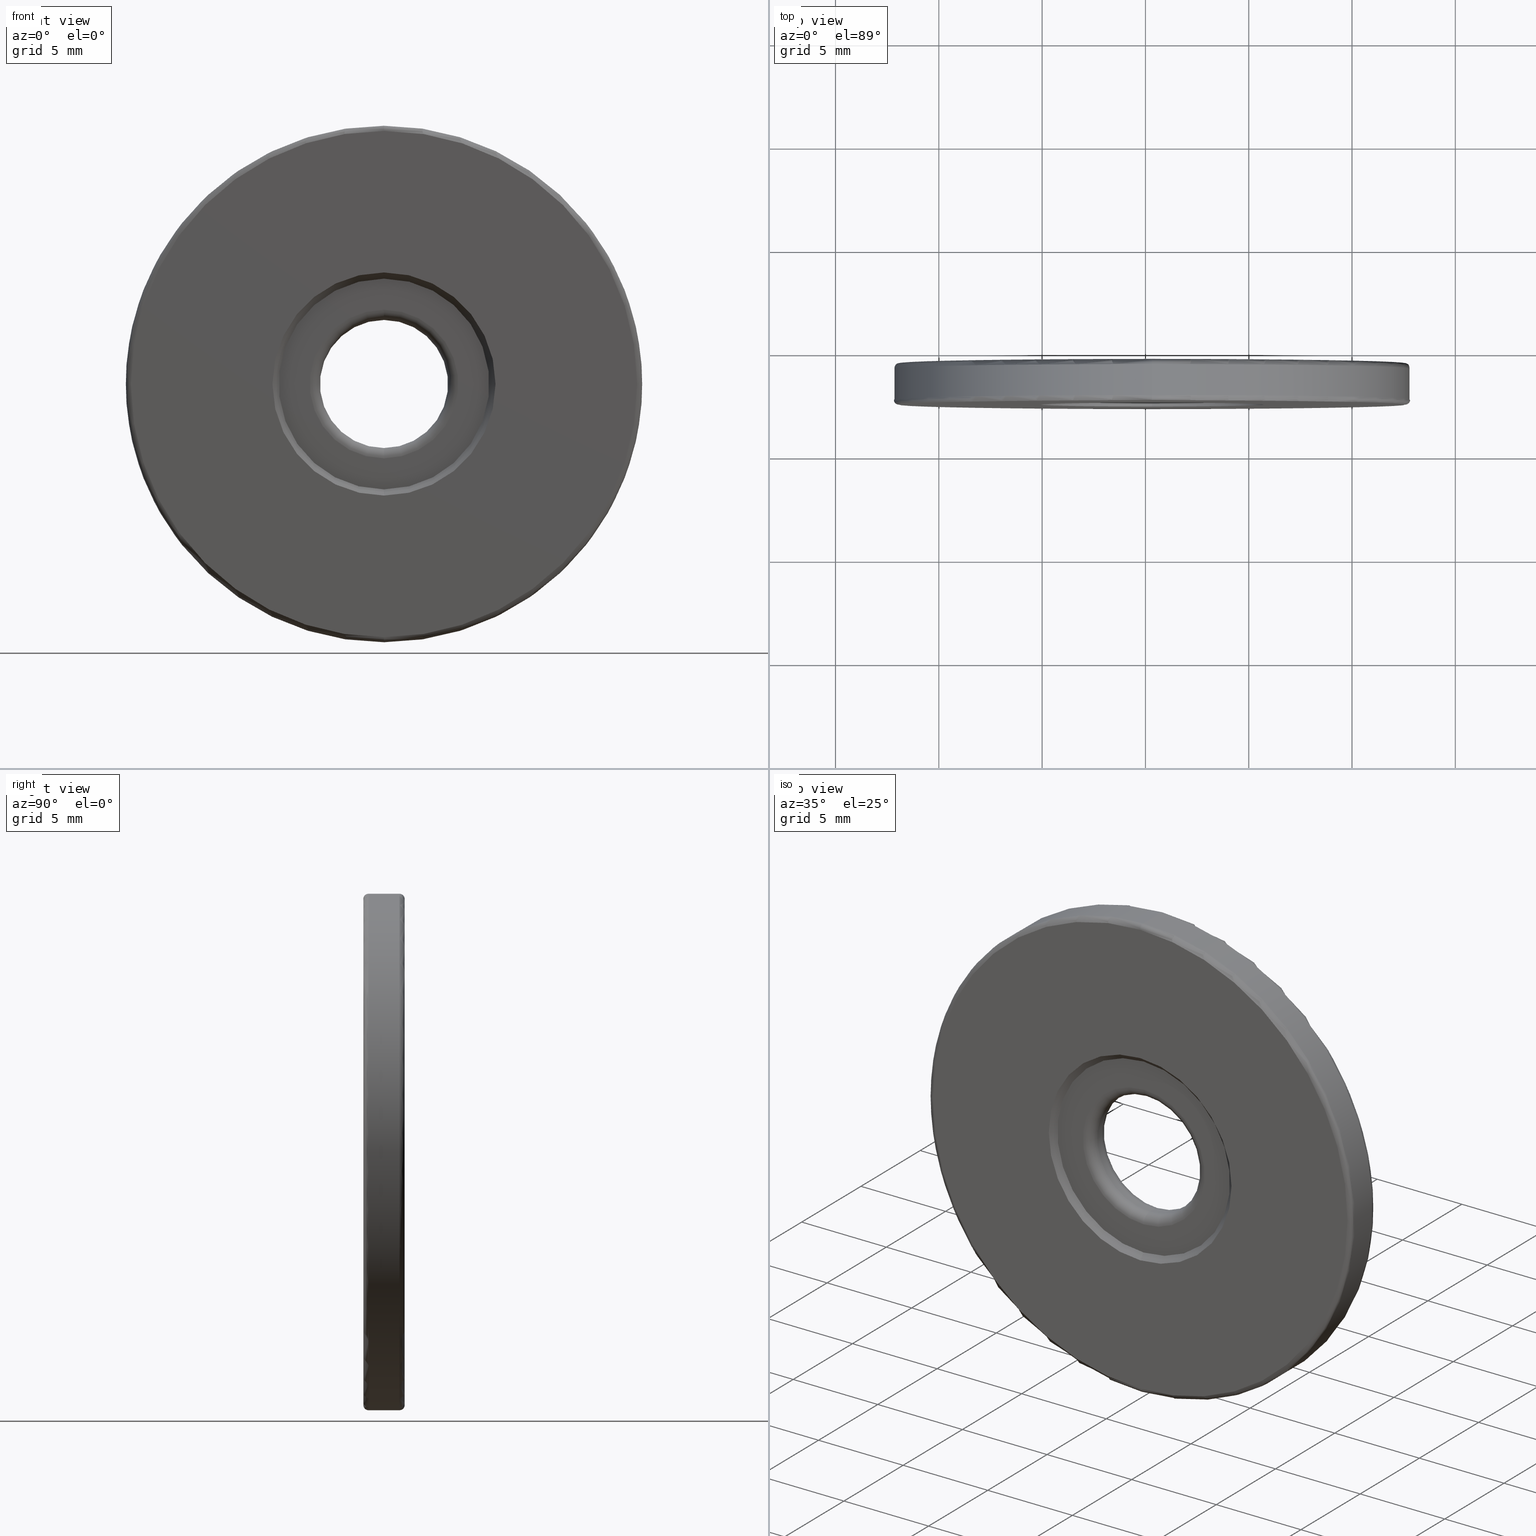
[diagram: canonical four-view strip — front | top / right | iso, engineering-drawing reading convention]
A machine part, canonical four-view strip (front | top / right | iso — engineering-drawing reading convention). The complete STEP part file that produces these views, byte-faithful:
ISO-10303-21;
HEADER;
FILE_DESCRIPTION (( 'STEP AP203' ),
    '1' );
FILE_NAME ('1.4.2.101_ZGH-25-DK2.STEP',
    '2022-04-15T02:59:30',
    ( '' ),
    ( '' ),
    'SwSTEP 2.0',
    'SolidWorks 2021',
    '' );
FILE_SCHEMA (( 'CONFIG_CONTROL_DESIGN' ));
ENDSEC;

DATA;
#1 = ADVANCED_FACE ( 'NONE', ( #565, #130 ), #326, .T. ) ;
#2 = CARTESIAN_POINT ( 'NONE',  ( -4.682026255059964726, -1.794975976998274936, 25.00000000000000000 ) ) ;
#3 = AXIS2_PLACEMENT_3D ( 'NONE', #501, #265, #271 ) ;
#4 = AXIS2_PLACEMENT_3D ( 'NONE', #418, #551, #172 ) ;
#5 = LOCAL_TIME ( 10, 59, 30.00000000000000000, #485 ) ;
#6 = DIRECTION ( 'NONE',  ( -1.000000000000000000, -0.0000000000000000000, -0.0000000000000000000 ) ) ;
#7 = DIRECTION ( 'NONE',  ( 0.0000000000000000000, 0.0000000000000000000, 1.000000000000000000 ) ) ;
#8 = DIRECTION ( 'NONE',  ( 0.0000000000000000000, 0.0000000000000000000, 1.000000000000000000 ) ) ;
#9 = FACE_BOUND ( 'NONE', #506, .T. ) ;
#10 = DATE_AND_TIME ( #64, #5 ) ;
#11 = DIRECTION ( 'NONE',  ( 0.0000000000000000000, 1.000000000000000000, 0.0000000000000000000 ) ) ;
#12 = AXIS2_PLACEMENT_3D ( 'NONE', #143, #546, #8 ) ;
#13 = AXIS2_PLACEMENT_3D ( 'NONE', #128, #571, #295 ) ;
#14 = DIRECTION ( 'NONE',  ( 0.0000000000000000000, -1.000000000000000000, 0.0000000000000000000 ) ) ;
#15 = CALENDAR_DATE ( 2022, 15, 4 ) ;
#16 = DIRECTION ( 'NONE',  ( 0.0000000000000000000, 0.0000000000000000000, 1.000000000000000000 ) ) ;
#17 = ORIENTED_EDGE ( 'NONE', *, *, #28, .F. ) ;
#18 = CC_DESIGN_PERSON_AND_ORGANIZATION_ASSIGNMENT ( #206, #544, ( #336 ) ) ;
#19 = CYLINDRICAL_SURFACE ( 'NONE', #120, 3.099999999999998757 ) ;
#20 = COORDINATED_UNIVERSAL_TIME_OFFSET ( 8, 0, .AHEAD. ) ;
#21 = DIRECTION ( 'NONE',  ( -0.0000000000000000000, 1.000000000000000000, -0.0000000000000000000 ) ) ;
#22 = VECTOR ( 'NONE', #109, 1000.000000000000000 ) ;
#23 = EDGE_LOOP ( 'NONE', ( #112, #280, #35, #330 ) ) ;
#24 = CIRCLE ( 'NONE', #324, 5.100000000000000533 ) ;
#25 = PERSON_AND_ORGANIZATION ( #556, #469 ) ;
#26 = CARTESIAN_POINT ( 'NONE',  ( -4.682026255059963837, -0.5949759769982747581, 19.60000000000000142 ) ) ;
#27 = ORIENTED_EDGE ( 'NONE', *, *, #446, .T. ) ;
#28 = EDGE_CURVE ( 'NONE', #275, #267, #603, .T. ) ;
#29 = CARTESIAN_POINT ( 'NONE',  ( -4.682026255059964726, -1.394975976998274803, 21.90000000000000213 ) ) ;
#30 = CARTESIAN_POINT ( 'NONE',  ( -4.682026255059964726, -2.594975976998274980, 25.00000000000000000 ) ) ;
#31 = ORIENTED_EDGE ( 'NONE', *, *, #268, .F. ) ;
#32 = EDGE_CURVE ( 'NONE', #272, #454, #377, .T. ) ;
#33 = CARTESIAN_POINT ( 'NONE',  ( -4.682026255059962949, -0.8449759769982747581, 12.50000000000000000 ) ) ;
#34 = DIRECTION ( 'NONE',  ( -0.0000000000000000000, -1.000000000000000000, -0.0000000000000000000 ) ) ;
#35 = ORIENTED_EDGE ( 'NONE', *, *, #38, .T. ) ;
#36 = AXIS2_PLACEMENT_3D ( 'NONE', #616, #279, #420 ) ;
#37 = CARTESIAN_POINT ( 'NONE',  ( -4.682026255059964726, -0.8449759769982747581, 25.00000000000000000 ) ) ;
#38 = EDGE_CURVE ( 'NONE', #213, #472, #584, .T. ) ;
#39 = DIRECTION ( 'NONE',  ( -0.0000000000000000000, -1.000000000000000000, -0.0000000000000000000 ) ) ;
#40 = ORIENTED_EDGE ( 'NONE', *, *, #32, .F. ) ;
#41 = FACE_OUTER_BOUND ( 'NONE', #510, .T. ) ;
#42 = PLANE ( 'NONE',  #518 ) ;
#43 = VECTOR ( 'NONE', #439, 1000.000000000000000 ) ;
#44 = AXIS2_PLACEMENT_3D ( 'NONE', #89, #341, #191 ) ;
#45 = DIRECTION ( 'NONE',  ( 0.0000000000000000000, 1.000000000000000000, 0.0000000000000000000 ) ) ;
#46 = LINE ( 'NONE', #573, #179 ) ;
#47 = ORIENTED_EDGE ( 'NONE', *, *, #166, .F. ) ;
#48 = ADVANCED_FACE ( 'NONE', ( #190 ), #197, .F. ) ;
#49 = ORIENTED_EDGE ( 'NONE', *, *, #72, .T. ) ;
#50 = CARTESIAN_POINT ( 'NONE',  ( -4.682026255059964726, -2.594975976998274980, 28.10000000000000142 ) ) ;
#51 = CARTESIAN_POINT ( 'NONE',  ( -4.682026255059964726, -2.344975976998274980, 25.00000000000000000 ) ) ;
#52 = AXIS2_PLACEMENT_3D ( 'NONE', #394, #6, #104 ) ;
#53 = AXIS2_PLACEMENT_3D ( 'NONE', #276, #533, #97 ) ;
#54 = APPLICATION_PROTOCOL_DEFINITION ( 'international standard', 'config_control_design', 1994, #460 ) ;
#55 = LINE ( 'NONE', #283, #99 ) ;
#56 = CARTESIAN_POINT ( 'NONE',  ( -4.682026255059964726, -2.294975976998275158, 25.00000000000000000 ) ) ;
#57 = DIRECTION ( 'NONE',  ( -0.0000000000000000000, -1.000000000000000000, -0.0000000000000000000 ) ) ;
#58 = CC_DESIGN_PERSON_AND_ORGANIZATION_ASSIGNMENT ( #296, #591, ( #288 ) ) ;
#59 = VERTEX_POINT ( 'NONE', #154 ) ;
#60 = FACE_OUTER_BOUND ( 'NONE', #69, .T. ) ;
#61 = EDGE_CURVE ( 'NONE', #317, #269, #291, .T. ) ;
#62 = AXIS2_PLACEMENT_3D ( 'NONE', #435, #14, #348 ) ;
#63 = CIRCLE ( 'NONE', #36, 3.099999999999998757 ) ;
#64 = CALENDAR_DATE ( 2022, 15, 4 ) ;
#65 = DIRECTION ( 'NONE',  ( 0.0000000000000000000, 0.0000000000000000000, -1.000000000000000000 ) ) ;
#66 = ORIENTED_EDGE ( 'NONE', *, *, #166, .T. ) ;
#67 = DIRECTION ( 'NONE',  ( 0.0000000000000000000, 1.000000000000000000, 0.0000000000000000000 ) ) ;
#68 = FACE_OUTER_BOUND ( 'NONE', #160, .T. ) ;
#69 = EDGE_LOOP ( 'NONE', ( #354, #459 ) ) ;
#70 = DIRECTION ( 'NONE',  ( 0.0000000000000000000, 0.0000000000000000000, 1.000000000000000000 ) ) ;
#71 = ORIENTED_EDGE ( 'NONE', *, *, #82, .F. ) ;
#72 = EDGE_CURVE ( 'NONE', #193, #267, #107, .T. ) ;
#73 = CIRCLE ( 'NONE', #479, 12.50000000000000355 ) ;
#74 = DIRECTION ( 'NONE',  ( 1.000000000000000000, -0.0000000000000000000, 1.224646799147353207E-16 ) ) ;
#75 = ORIENTED_EDGE ( 'NONE', *, *, #360, .T. ) ;
#76 = PRODUCT_DEFINITION_FORMATION_WITH_SPECIFIED_SOURCE ( '�κ�', '', #336, .NOT_KNOWN. ) ;
#77 = FACE_OUTER_BOUND ( 'NONE', #474, .T. ) ;
#78 = ORIENTED_EDGE ( 'NONE', *, *, #124, .T. ) ;
#79 = ORIENTED_EDGE ( 'NONE', *, *, #489, .T. ) ;
#80 = FACE_OUTER_BOUND ( 'NONE', #513, .T. ) ;
#81 = ORIENTED_EDGE ( 'NONE', *, *, #268, .T. ) ;
#82 = EDGE_CURVE ( 'NONE', #617, #272, #524, .T. ) ;
#83 = FACE_OUTER_BOUND ( 'NONE', #23, .T. ) ;
#84 = ORIENTED_EDGE ( 'NONE', *, *, #582, .F. ) ;
#85 = CIRCLE ( 'NONE', #613, 0.5000000000000004441 ) ;
#86 = CIRCLE ( 'NONE', #614, 12.25000000000000355 ) ;
#87 = DIRECTION ( 'NONE',  ( 0.0000000000000000000, 1.000000000000000000, 0.0000000000000000000 ) ) ;
#88 = DIRECTION ( 'NONE',  ( 0.0000000000000000000, 1.000000000000000000, 0.0000000000000000000 ) ) ;
#89 = CARTESIAN_POINT ( 'NONE',  ( -4.682026255059964726, -2.294975976998275158, 25.00000000000000000 ) ) ;
#90 = ORIENTED_EDGE ( 'NONE', *, *, #412, .F. ) ;
#91 = DIRECTION ( 'NONE',  ( 0.0000000000000000000, 1.000000000000000000, 0.0000000000000000000 ) ) ;
#92 = EDGE_CURVE ( 'NONE', #213, #317, #155, .T. ) ;
#93 = ORIENTED_EDGE ( 'NONE', *, *, #493, .T. ) ;
#94 = CIRCLE ( 'NONE', #274, 3.599999999999999201 ) ;
#95 = EDGE_CURVE ( 'NONE', #617, #163, #85, .T. ) ;
#96 = VERTEX_POINT ( 'NONE', #577 ) ;
#97 = DIRECTION ( 'NONE',  ( 0.0000000000000000000, 0.0000000000000000000, 1.000000000000000000 ) ) ;
#98 = AXIS2_PLACEMENT_3D ( 'NONE', #159, #162, #115 ) ;
#99 = VECTOR ( 'NONE', #430, 1000.000000000000000 ) ;
#100 = DIRECTION ( 'NONE',  ( -1.000000000000000000, 0.0000000000000000000, 0.0000000000000000000 ) ) ;
#101 = LINE ( 'NONE', #50, #133 ) ;
#102 = ORIENTED_EDGE ( 'NONE', *, *, #588, .F. ) ;
#103 = CARTESIAN_POINT ( 'NONE',  ( -4.682026255059964726, -0.5949759769982747581, 25.00000000000000000 ) ) ;
#104 = DIRECTION ( 'NONE',  ( 0.0000000000000000000, 0.0000000000000000000, 1.000000000000000000 ) ) ;
#105 = ADVANCED_FACE ( 'NONE', ( #486 ), #466, .T. ) ;
#106 = ORIENTED_EDGE ( 'NONE', *, *, #95, .T. ) ;
#107 = CIRCLE ( 'NONE', #516, 0.5000000000000004441 ) ;
#108 = AXIS2_PLACEMENT_3D ( 'NONE', #559, #452, #400 ) ;
#109 = DIRECTION ( 'NONE',  ( 0.0000000000000000000, 0.7071067811865454633, 0.7071067811865495711 ) ) ;
#110 = ORIENTED_EDGE ( 'NONE', *, *, #340, .T. ) ;
#111 = DIRECTION ( 'NONE',  ( 0.0000000000000000000, 0.0000000000000000000, 1.000000000000000000 ) ) ;
#112 = ORIENTED_EDGE ( 'NONE', *, *, #61, .F. ) ;
#113 = ADVANCED_FACE ( 'NONE', ( #204 ), #547, .T. ) ;
#114 = PERSON_AND_ORGANIZATION ( #556, #469 ) ;
#115 = DIRECTION ( 'NONE',  ( 0.0000000000000000000, 0.0000000000000000000, 1.000000000000000000 ) ) ;
#116 = DIRECTION ( 'NONE',  ( 0.0000000000000000000, 0.0000000000000000000, -1.000000000000000000 ) ) ;
#117 = ORIENTED_EDGE ( 'NONE', *, *, #566, .F. ) ;
#118 = SHAPE_DEFINITION_REPRESENTATION ( #289, #184 ) ;
#119 = DIRECTION ( 'NONE',  ( 0.0000000000000000000, -1.000000000000000000, 0.0000000000000000000 ) ) ;
#120 = AXIS2_PLACEMENT_3D ( 'NONE', #207, #396, #592 ) ;
#121 = EDGE_LOOP ( 'NONE', ( #540, #81, #527, #509 ) ) ;
#122 = UNCERTAINTY_MEASURE_WITH_UNIT (LENGTH_MEASURE( 1.000000000000000082E-05 ), #378, 'distance_accuracy_value', 'NONE');
#123 = CARTESIAN_POINT ( 'NONE',  ( -4.682026255059963837, -2.594975976998274980, 30.40000000000000568 ) ) ;
#124 = EDGE_CURVE ( 'NONE', #158, #284, #492, .T. ) ;
#125 = SECURITY_CLASSIFICATION_LEVEL ( 'unclassified' ) ;
#126 = LINE ( 'NONE', #367, #285 ) ;
#127 = EDGE_LOOP ( 'NONE', ( #427, #498, #238, #380 ) ) ;
#128 = CARTESIAN_POINT ( 'NONE',  ( -4.682026255059964726, -0.5949759769982747581, 25.00000000000000000 ) ) ;
#129 = DIRECTION ( 'NONE',  ( 0.0000000000000000000, 0.0000000000000000000, -1.000000000000000000 ) ) ;
#130 = FACE_OUTER_BOUND ( 'NONE', #314, .T. ) ;
#131 = TOROIDAL_SURFACE ( 'NONE', #436, 12.25000000000000000, 0.2500000000000000000 ) ;
#132 = AXIS2_PLACEMENT_3D ( 'NONE', #2, #183, #379 ) ;
#133 = VECTOR ( 'NONE', #282, 1000.000000000000000 ) ;
#134 = DIRECTION ( 'NONE',  ( 0.0000000000000000000, 0.0000000000000000000, 1.000000000000000000 ) ) ;
#135 = EDGE_LOOP ( 'NONE', ( #364, #240, #562, #102 ) ) ;
#136 = ADVANCED_FACE ( 'NONE', ( #255 ), #242, .T. ) ;
#137 = CARTESIAN_POINT ( 'NONE',  ( -4.682026255059963837, -0.8949759769982746915, 21.40000000000000213 ) ) ;
#138 = AXIS2_PLACEMENT_3D ( 'NONE', #520, #88, #278 ) ;
#139 = AXIS2_PLACEMENT_3D ( 'NONE', #463, #369, #519 ) ;
#140 = FACE_BOUND ( 'NONE', #260, .T. ) ;
#141 = ORIENTED_EDGE ( 'NONE', *, *, #28, .T. ) ;
#142 = ADVANCED_FACE ( 'NONE', ( #478, #60 ), #249, .T. ) ;
#143 = CARTESIAN_POINT ( 'NONE',  ( -4.682026255059964726, -0.8449759769982747581, 25.00000000000000000 ) ) ;
#144 = VERTEX_POINT ( 'NONE', #241 ) ;
#145 = CARTESIAN_POINT ( 'NONE',  ( -4.682026255059964726, -0.8949759769982746915, 30.10000000000000142 ) ) ;
#146 = COORDINATED_UNIVERSAL_TIME_OFFSET ( 8, 0, .AHEAD. ) ;
#147 = AXIS2_PLACEMENT_3D ( 'NONE', #605, #21, #70 ) ;
#148 = CALENDAR_DATE ( 2022, 15, 4 ) ;
#149 = CARTESIAN_POINT ( 'NONE',  ( -4.682026255059964726, -0.5949759769982747581, 12.50000000000000000 ) ) ;
#150 = EDGE_CURVE ( 'NONE', #472, #269, #73, .T. ) ;
#151 = DIRECTION ( 'NONE',  ( -0.0000000000000000000, -1.000000000000000000, -0.0000000000000000000 ) ) ;
#152 = EDGE_LOOP ( 'NONE', ( #392, #298, #141, #549 ) ) ;
#153 = APPROVAL_ROLE ( '' ) ;
#154 = CARTESIAN_POINT ( 'NONE',  ( -4.682026255059964726, -2.594975976998274980, 37.25000000000000711 ) ) ;
#155 = CIRCLE ( 'NONE', #555, 12.50000000000000355 ) ;
#156 = CIRCLE ( 'NONE', #361, 3.099999999999998757 ) ;
#157 = FACE_OUTER_BOUND ( 'NONE', #219, .T. ) ;
#158 = VERTEX_POINT ( 'NONE', #26 ) ;
#159 = CARTESIAN_POINT ( 'NONE',  ( -4.682026255059964726, -0.8449759769982747581, 25.00000000000000000 ) ) ;
#160 = EDGE_LOOP ( 'NONE', ( #305, #264, #307, #117 ) ) ;
#161 = CALENDAR_DATE ( 2022, 15, 4 ) ;
#162 = DIRECTION ( 'NONE',  ( -0.0000000000000000000, -1.000000000000000000, -0.0000000000000000000 ) ) ;
#163 = VERTEX_POINT ( 'NONE', #304 ) ;
#164 = CARTESIAN_POINT ( 'NONE',  ( -4.682026255059964726, -1.394975976998274803, 28.10000000000000142 ) ) ;
#165 = AXIS2_PLACEMENT_3D ( 'NONE', #312, #74, #596 ) ;
#166 = EDGE_CURVE ( 'NONE', #383, #284, #263, .T. ) ;
#167 = PERSON_AND_ORGANIZATION_ROLE ( 'design_supplier' ) ;
#168 = CARTESIAN_POINT ( 'NONE',  ( -4.682026255059964726, -0.8949759769982746915, 28.60000000000000142 ) ) ;
#169 = DIRECTION ( 'NONE',  ( 0.0000000000000000000, -1.000000000000000000, 0.0000000000000000000 ) ) ;
#170 = ORIENTED_EDGE ( 'NONE', *, *, #609, .T. ) ;
#171 = CARTESIAN_POINT ( 'NONE',  ( -4.682026255059964726, -1.794975976998274936, 25.00000000000000000 ) ) ;
#172 = DIRECTION ( 'NONE',  ( 0.0000000000000000000, -0.0000000000000000000, 1.000000000000000000 ) ) ;
#173 = ORIENTED_EDGE ( 'NONE', *, *, #442, .F. ) ;
#174 = CARTESIAN_POINT ( 'NONE',  ( -4.682026255059964726, -0.8449759769982747581, 37.50000000000000711 ) ) ;
#175 = CIRCLE ( 'NONE', #147, 5.100000000000000533 ) ;
#176 = CARTESIAN_POINT ( 'NONE',  ( -4.682026255059964726, -1.394975976998274803, 25.00000000000000000 ) ) ;
#177 = CONICAL_SURFACE ( 'NONE', #293, 5.100000000000000533, 0.7853981633974511656 ) ;
#178 = DIRECTION ( 'NONE',  ( 0.0000000000000000000, 0.0000000000000000000, 1.000000000000000000 ) ) ;
#179 = VECTOR ( 'NONE', #287, 999.9999999999998863 ) ;
#180 = ADVANCED_FACE ( 'NONE', ( #157 ), #131, .T. ) ;
#181 = CARTESIAN_POINT ( 'NONE',  ( -4.682026255059964726, -0.8949759769982746915, 25.00000000000000000 ) ) ;
#182 = CARTESIAN_POINT ( 'NONE',  ( -4.682026255059962949, -2.294975976998275158, 28.60000000000000142 ) ) ;
#183 = DIRECTION ( 'NONE',  ( 0.0000000000000000000, -1.000000000000000000, 0.0000000000000000000 ) ) ;
#184 = MANIFOLD_SURFACE_SHAPE_REPRESENTATION ( '1.4.2.101_ZGH-25-DK2', ( #579, #557 ), #243 ) ;
#185 = EDGE_CURVE ( 'NONE', #576, #440, #601, .T. ) ;
#186 = EDGE_LOOP ( 'NONE', ( #27, #359 ) ) ;
#187 = AXIS2_PLACEMENT_3D ( 'NONE', #176, #347, #247 ) ;
#188 = CIRCLE ( 'NONE', #262, 0.5000000000000004441 ) ;
#189 =( NAMED_UNIT ( * ) SI_UNIT ( $, .STERADIAN. ) SOLID_ANGLE_UNIT ( ) );
#190 = FACE_OUTER_BOUND ( 'NONE', #337, .T. ) ;
#191 = DIRECTION ( 'NONE',  ( 0.0000000000000000000, 0.0000000000000000000, -1.000000000000000000 ) ) ;
#192 = DIRECTION ( 'NONE',  ( 0.0000000000000000000, 0.0000000000000000000, 1.000000000000000000 ) ) ;
#193 = VERTEX_POINT ( 'NONE', #168 ) ;
#194 = PLANE ( 'NONE',  #4 ) ;
#195 = DIRECTION ( 'NONE',  ( 0.0000000000000000000, 0.0000000000000000000, 1.000000000000000000 ) ) ;
#196 = ADVANCED_FACE ( 'NONE', ( #80 ), #177, .F. ) ;
#197 = CONICAL_SURFACE ( 'NONE', #209, 5.100000000000000533, 0.7853981633974511656 ) ;
#198 = AXIS2_PLACEMENT_3D ( 'NONE', #523, #91, #281 ) ;
#199 = APPROVAL_PERSON_ORGANIZATION ( #395, #543, #585 ) ;
#200 = CARTESIAN_POINT ( 'NONE',  ( -4.682026255059962949, -0.5949759769982747581, 12.75000000000000178 ) ) ;
#201 = CARTESIAN_POINT ( 'NONE',  ( -4.682026255059964726, -0.8449759769982747581, 25.00000000000000000 ) ) ;
#202 = EDGE_CURVE ( 'NONE', #317, #502, #574, .T. ) ;
#203 = DATE_AND_TIME ( #15, #507 ) ;
#204 = FACE_OUTER_BOUND ( 'NONE', #127, .T. ) ;
#205 = EDGE_CURVE ( 'NONE', #317, #213, #371, .T. ) ;
#206 = PERSON_AND_ORGANIZATION ( #556, #469 ) ;
#207 = CARTESIAN_POINT ( 'NONE',  ( -4.682026255059964726, -2.594975976998274980, 25.00000000000000000 ) ) ;
#208 = ORIENTED_EDGE ( 'NONE', *, *, #376, .T. ) ;
#209 = AXIS2_PLACEMENT_3D ( 'NONE', #491, #381, #391 ) ;
#210 = AXIS2_PLACEMENT_3D ( 'NONE', #471, #374, #464 ) ;
#211 = DIRECTION ( 'NONE',  ( 0.0000000000000000000, 0.0000000000000000000, -1.000000000000000000 ) ) ;
#212 = CC_DESIGN_APPROVAL ( #570, ( #76 ) ) ;
#213 = VERTEX_POINT ( 'NONE', #33 ) ;
#214 = PERSON_AND_ORGANIZATION ( #556, #469 ) ;
#215 = DIRECTION ( 'NONE',  ( 0.0000000000000000000, 1.000000000000000000, 0.0000000000000000000 ) ) ;
#216 = ORIENTED_EDGE ( 'NONE', *, *, #340, .F. ) ;
#217 = CARTESIAN_POINT ( 'NONE',  ( -4.682026255059964726, -2.344975976998274980, 37.25000000000000711 ) ) ;
#218 = DIRECTION ( 'NONE',  ( 0.0000000000000000000, 0.0000000000000000000, 1.000000000000000000 ) ) ;
#219 = EDGE_LOOP ( 'NONE', ( #532, #216, #309, #602 ) ) ;
#220 = ADVANCED_FACE ( 'NONE', ( #68 ), #410, .T. ) ;
#221 = DATE_AND_TIME ( #270, #539 ) ;
#222 = DIRECTION ( 'NONE',  ( 0.0000000000000000000, 0.0000000000000000000, -1.000000000000000000 ) ) ;
#223 = CIRCLE ( 'NONE', #235, 5.400000000000005684 ) ;
#224 = ORIENTED_EDGE ( 'NONE', *, *, #205, .F. ) ;
#225 = SECURITY_CLASSIFICATION ( '', '', #125 ) ;
#226 = CARTESIAN_POINT ( 'NONE',  ( -4.682026255059964726, -1.794975976998274936, 21.90000000000000213 ) ) ;
#227 = CARTESIAN_POINT ( 'NONE',  ( -4.682026255059964726, -0.5949759769982747581, 25.00000000000000000 ) ) ;
#228 = ORIENTED_EDGE ( 'NONE', *, *, #489, .F. ) ;
#229 = DIRECTION ( 'NONE',  ( 0.0000000000000000000, 0.0000000000000000000, 1.000000000000000000 ) ) ;
#230 = ADVANCED_FACE ( 'NONE', ( #308 ), #553, .F. ) ;
#231 = ORIENTED_EDGE ( 'NONE', *, *, #582, .T. ) ;
#232 = CARTESIAN_POINT ( 'NONE',  ( -4.682026255059964726, -1.394975976998274803, 25.00000000000000000 ) ) ;
#233 = CIRCLE ( 'NONE', #108, 0.2500000000000002220 ) ;
#234 = EDGE_LOOP ( 'NONE', ( #31, #224, #587, #228 ) ) ;
#235 = AXIS2_PLACEMENT_3D ( 'NONE', #468, #45, #561 ) ;
#236 = LOCAL_TIME ( 10, 59, 30.00000000000000000, #20 ) ;
#237 = DIRECTION ( 'NONE',  ( 0.0000000000000000000, -0.0000000000000000000, 1.000000000000000000 ) ) ;
#238 = ORIENTED_EDGE ( 'NONE', *, *, #390, .F. ) ;
#239 = EDGE_CURVE ( 'NONE', #522, #576, #175, .T. ) ;
#240 = ORIENTED_EDGE ( 'NONE', *, *, #185, .T. ) ;
#241 = CARTESIAN_POINT ( 'NONE',  ( -4.682026255059963837, -0.8949759769982746915, 19.90000000000000213 ) ) ;
#242 = TOROIDAL_SURFACE ( 'NONE', #344, 12.25000000000000000, 0.2500000000000000000 ) ;
#243 =( GEOMETRIC_REPRESENTATION_CONTEXT ( 3 ) GLOBAL_UNCERTAINTY_ASSIGNED_CONTEXT ( ( #122 ) ) GLOBAL_UNIT_ASSIGNED_CONTEXT ( ( #378, #428, #189 ) ) REPRESENTATION_CONTEXT ( 'NONE', 'WORKASPACE' ) );
#244 = DIRECTION ( 'NONE',  ( 0.0000000000000000000, 0.0000000000000000000, -1.000000000000000000 ) ) ;
#245 = CARTESIAN_POINT ( 'NONE',  ( -4.682026255059964726, -2.344975976998274980, 12.50000000000000000 ) ) ;
#246 = APPROVAL_STATUS ( 'not_yet_approved' ) ;
#247 = DIRECTION ( 'NONE',  ( 0.0000000000000000000, 0.0000000000000000000, 1.000000000000000000 ) ) ;
#248 = ADVANCED_FACE ( 'NONE', ( #77 ), #504, .T. ) ;
#249 = PLANE ( 'NONE',  #62 ) ;
#250 = PRODUCT_RELATED_PRODUCT_CATEGORY ( 'detail', '', ( #336 ) ) ;
#251 = OPEN_SHELL ( 'NONE', ( #48, #113, #302, #310, #499, #136, #248, #105, #475, #366, #558, #180, #612, #332, #142, #220, #230, #402, #1, #196 ) ) ;
#252 = TOROIDAL_SURFACE ( 'NONE', #568, 3.600000000000000089, 0.5000000000000000000 ) ;
#253 = CC_DESIGN_APPROVAL ( #406, ( #225 ) ) ;
#254 = PERSON_AND_ORGANIZATION ( #556, #469 ) ;
#255 = FACE_OUTER_BOUND ( 'NONE', #451, .T. ) ;
#256 = EDGE_CURVE ( 'NONE', #320, #472, #233, .T. ) ;
#257 = DIRECTION ( 'NONE',  ( 0.0000000000000000000, 0.0000000000000000000, 1.000000000000000000 ) ) ;
#258 = ORIENTED_EDGE ( 'NONE', *, *, #572, .F. ) ;
#259 = DIRECTION ( 'NONE',  ( 8.659560562354945184E-17, -0.7071067811865464625, 0.7071067811865486830 ) ) ;
#260 = EDGE_LOOP ( 'NONE', ( #401, #368 ) ) ;
#261 = AXIS2_PLACEMENT_3D ( 'NONE', #217, #408, #414 ) ;
#262 = AXIS2_PLACEMENT_3D ( 'NONE', #461, #375, #611 ) ;
#263 = LINE ( 'NONE', #597, #22 ) ;
#264 = ORIENTED_EDGE ( 'NONE', *, *, #382, .F. ) ;
#265 = DIRECTION ( 'NONE',  ( -0.0000000000000000000, 1.000000000000000000, -0.0000000000000000000 ) ) ;
#266 = DIRECTION ( 'NONE',  ( -0.0000000000000000000, 1.000000000000000000, -0.0000000000000000000 ) ) ;
#267 = VERTEX_POINT ( 'NONE', #164 ) ;
#268 = EDGE_CURVE ( 'NONE', #213, #599, #604, .T. ) ;
#269 = VERTEX_POINT ( 'NONE', #449 ) ;
#270 = CALENDAR_DATE ( 2022, 15, 4 ) ;
#271 = DIRECTION ( 'NONE',  ( 0.0000000000000000000, 0.0000000000000000000, 1.000000000000000000 ) ) ;
#272 = VERTEX_POINT ( 'NONE', #508 ) ;
#273 = AXIS2_PLACEMENT_3D ( 'NONE', #443, #353, #211 ) ;
#274 = AXIS2_PLACEMENT_3D ( 'NONE', #484, #57, #458 ) ;
#275 = VERTEX_POINT ( 'NONE', #29 ) ;
#276 = CARTESIAN_POINT ( 'NONE',  ( -4.682026255059964726, -2.344975976998274980, 25.00000000000000000 ) ) ;
#277 = FACE_OUTER_BOUND ( 'NONE', #135, .T. ) ;
#278 = DIRECTION ( 'NONE',  ( 0.0000000000000000000, -0.0000000000000000000, 1.000000000000000000 ) ) ;
#279 = DIRECTION ( 'NONE',  ( 0.0000000000000000000, 1.000000000000000000, 0.0000000000000000000 ) ) ;
#280 = ORIENTED_EDGE ( 'NONE', *, *, #205, .T. ) ;
#281 = DIRECTION ( 'NONE',  ( 0.0000000000000000000, 0.0000000000000000000, 1.000000000000000000 ) ) ;
#282 = DIRECTION ( 'NONE',  ( -0.0000000000000000000, 1.000000000000000000, -0.0000000000000000000 ) ) ;
#283 = CARTESIAN_POINT ( 'NONE',  ( -4.682026255059963837, -0.8949759769982721380, 19.90000000000000213 ) ) ;
#284 = VERTEX_POINT ( 'NONE', #441 ) ;
#285 = VECTOR ( 'NONE', #319, 1000.000000000000000 ) ;
#286 = EDGE_CURVE ( 'NONE', #59, #269, #615, .T. ) ;
#287 = DIRECTION ( 'NONE',  ( 0.0000000000000000000, -0.7071067811865464625, -0.7071067811865486830 ) ) ;
#288 = PRODUCT_DEFINITION ( 'δ֪', '', #76, #515 ) ;
#289 = PRODUCT_DEFINITION_SHAPE ( 'NONE', 'NONE',  #288 ) ;
#290 = DIRECTION ( 'NONE',  ( -0.0000000000000000000, -1.000000000000000000, -0.0000000000000000000 ) ) ;
#291 = LINE ( 'NONE', #481, #455 ) ;
#292 = ORIENTED_EDGE ( 'NONE', *, *, #588, .T. ) ;
#293 = AXIS2_PLACEMENT_3D ( 'NONE', #363, #316, #511 ) ;
#294 = CIRCLE ( 'NONE', #132, 3.099999999999998757 ) ;
#295 = DIRECTION ( 'NONE',  ( 0.0000000000000000000, 0.0000000000000000000, 1.000000000000000000 ) ) ;
#296 = PERSON_AND_ORGANIZATION ( #556, #469 ) ;
#297 = DIRECTION ( 'NONE',  ( -0.0000000000000000000, -1.000000000000000000, -0.0000000000000000000 ) ) ;
#298 = ORIENTED_EDGE ( 'NONE', *, *, #541, .T. ) ;
#299 = APPLICATION_PROTOCOL_DEFINITION ( 'international standard', 'config_control_design', 1994, #415 ) ;
#300 = ORIENTED_EDGE ( 'NONE', *, *, #321, .F. ) ;
#301 = ORIENTED_EDGE ( 'NONE', *, *, #82, .T. ) ;
#302 = ADVANCED_FACE ( 'NONE', ( #365 ), #19, .F. ) ;
#303 = AXIS2_PLACEMENT_3D ( 'NONE', #37, #87, #229 ) ;
#304 = CARTESIAN_POINT ( 'NONE',  ( -4.682026255059964726, -1.794975976998274936, 28.10000000000000142 ) ) ;
#305 = ORIENTED_EDGE ( 'NONE', *, *, #95, .F. ) ;
#306 = CARTESIAN_POINT ( 'NONE',  ( -4.682026255059964726, -1.794975976998274936, 25.00000000000000000 ) ) ;
#307 = ORIENTED_EDGE ( 'NONE', *, *, #32, .T. ) ;
#308 = FACE_OUTER_BOUND ( 'NONE', #607, .T. ) ;
#309 = ORIENTED_EDGE ( 'NONE', *, *, #286, .T. ) ;
#310 = ADVANCED_FACE ( 'NONE', ( #384 ), #252, .T. ) ;
#311 = PERSON_AND_ORGANIZATION ( #556, #469 ) ;
#312 = CARTESIAN_POINT ( 'NONE',  ( -4.682026255059962949, -0.8449759769982747581, 12.75000000000000178 ) ) ;
#313 = ORIENTED_EDGE ( 'NONE', *, *, #528, .T. ) ;
#314 = EDGE_LOOP ( 'NONE', ( #462, #75 ) ) ;
#315 = COORDINATED_UNIVERSAL_TIME_OFFSET ( 8, 0, .AHEAD. ) ;
#316 = DIRECTION ( 'NONE',  ( 0.0000000000000000000, 1.000000000000000000, 0.0000000000000000000 ) ) ;
#317 = VERTEX_POINT ( 'NONE', #174 ) ;
#318 = DIRECTION ( 'NONE',  ( 0.0000000000000000000, 0.0000000000000000000, 1.000000000000000000 ) ) ;
#319 = DIRECTION ( 'NONE',  ( -0.0000000000000000000, 1.000000000000000000, -0.0000000000000000000 ) ) ;
#320 = VERTEX_POINT ( 'NONE', #569 ) ;
#321 = EDGE_CURVE ( 'NONE', #440, #96, #223, .T. ) ;
#322 = AXIS2_PLACEMENT_3D ( 'NONE', #433, #11, #195 ) ;
#323 = CARTESIAN_POINT ( 'NONE',  ( -4.682026255059963837, -2.594975976998274980, 30.40000000000000568 ) ) ;
#324 = AXIS2_PLACEMENT_3D ( 'NONE', #419, #266, #358 ) ;
#325 = CYLINDRICAL_SURFACE ( 'NONE', #482, 12.50000000000000000 ) ;
#326 = PLANE ( 'NONE',  #138 ) ;
#327 = LOCAL_TIME ( 10, 59, 30.00000000000000000, #146 ) ;
#328 = DIRECTION ( 'NONE',  ( 0.0000000000000000000, 0.0000000000000000000, -1.000000000000000000 ) ) ;
#329 = FACE_OUTER_BOUND ( 'NONE', #594, .T. ) ;
#330 = ORIENTED_EDGE ( 'NONE', *, *, #150, .T. ) ;
#331 = DIRECTION ( 'NONE',  ( 0.0000000000000000000, 0.0000000000000000000, 1.000000000000000000 ) ) ;
#332 = ADVANCED_FACE ( 'NONE', ( #578 ), #411, .F. ) ;
#333 = AXIS2_PLACEMENT_3D ( 'NONE', #103, #151, #586 ) ;
#334 = ORIENTED_EDGE ( 'NONE', *, *, #360, .F. ) ;
#335 = CIRCLE ( 'NONE', #388, 12.25000000000000355 ) ;
#336 = PRODUCT ( '1.4.2.101_ZGH-25-DK2', '1.4.2.101_ZGH-25-DK2', '', ( #434 ) ) ;
#337 = EDGE_LOOP ( 'NONE', ( #334, #552, #84, #47 ) ) ;
#338 = COORDINATED_UNIVERSAL_TIME_OFFSET ( 8, 0, .AHEAD. ) ;
#339 = DIRECTION ( 'NONE',  ( 0.0000000000000000000, 1.000000000000000000, 0.0000000000000000000 ) ) ;
#340 = EDGE_CURVE ( 'NONE', #59, #320, #335, .T. ) ;
#341 = DIRECTION ( 'NONE',  ( -0.0000000000000000000, 1.000000000000000000, -0.0000000000000000000 ) ) ;
#342 = DATE_AND_TIME ( #148, #327 ) ;
#343 = DIRECTION ( 'NONE',  ( -0.0000000000000000000, 1.000000000000000000, -0.0000000000000000000 ) ) ;
#344 = AXIS2_PLACEMENT_3D ( 'NONE', #51, #488, #537 ) ;
#345 = AXIS2_PLACEMENT_3D ( 'NONE', #606, #453, #505 ) ;
#346 = CARTESIAN_POINT ( 'NONE',  ( 0.0000000000000000000, 0.0000000000000000000, 0.0000000000000000000 ) ) ;
#347 = DIRECTION ( 'NONE',  ( 0.0000000000000000000, 1.000000000000000000, 0.0000000000000000000 ) ) ;
#348 = DIRECTION ( 'NONE',  ( 0.0000000000000000000, 0.0000000000000000000, 1.000000000000000000 ) ) ;
#349 = ORIENTED_EDGE ( 'NONE', *, *, #38, .F. ) ;
#350 = CARTESIAN_POINT ( 'NONE',  ( -4.682026255059963837, -1.794975976998274936, 28.60000000000000142 ) ) ;
#351 = CIRCLE ( 'NONE', #345, 12.25000000000000355 ) ;
#352 = ORIENTED_EDGE ( 'NONE', *, *, #530, .F. ) ;
#353 = DIRECTION ( 'NONE',  ( -0.0000000000000000000, -1.000000000000000000, -0.0000000000000000000 ) ) ;
#354 = ORIENTED_EDGE ( 'NONE', *, *, #239, .F. ) ;
#355 = EDGE_CURVE ( 'NONE', #437, #193, #495, .T. ) ;
#356 = APPROVAL_DATE_TIME ( #399, #406 ) ;
#357 = CARTESIAN_POINT ( 'NONE',  ( -4.682026255059964726, -0.8449759769982747581, 37.25000000000000711 ) ) ;
#358 = DIRECTION ( 'NONE',  ( 0.0000000000000000000, 0.0000000000000000000, 1.000000000000000000 ) ) ;
#359 = ORIENTED_EDGE ( 'NONE', *, *, #355, .T. ) ;
#360 = EDGE_CURVE ( 'NONE', #144, #383, #517, .T. ) ;
#361 = AXIS2_PLACEMENT_3D ( 'NONE', #598, #169, #129 ) ;
#362 = PERSON_AND_ORGANIZATION_ROLE ( 'classification_officer' ) ;
#363 = CARTESIAN_POINT ( 'NONE',  ( -4.682026255059964726, -0.8949759769982721380, 25.00000000000000000 ) ) ;
#364 = ORIENTED_EDGE ( 'NONE', *, *, #239, .T. ) ;
#365 = FACE_OUTER_BOUND ( 'NONE', #152, .T. ) ;
#366 = ADVANCED_FACE ( 'NONE', ( #423 ), #575, .T. ) ;
#367 = CARTESIAN_POINT ( 'NONE',  ( -4.682026255059964726, -2.594975976998274980, 21.90000000000000213 ) ) ;
#368 = ORIENTED_EDGE ( 'NONE', *, *, #321, .T. ) ;
#369 = DIRECTION ( 'NONE',  ( -0.0000000000000000000, -1.000000000000000000, -0.0000000000000000000 ) ) ;
#370 = ORIENTED_EDGE ( 'NONE', *, *, #541, .F. ) ;
#371 = CIRCLE ( 'NONE', #98, 12.50000000000000355 ) ;
#372 = DIRECTION ( 'NONE',  ( 0.0000000000000000000, -1.000000000000000000, 0.0000000000000000000 ) ) ;
#373 = CIRCLE ( 'NONE', #44, 3.599999999999999201 ) ;
#374 = DIRECTION ( 'NONE',  ( -0.0000000000000000000, -1.000000000000000000, -0.0000000000000000000 ) ) ;
#375 = DIRECTION ( 'NONE',  ( 1.000000000000000000, -0.0000000000000000000, 1.224646799147353207E-16 ) ) ;
#376 = EDGE_CURVE ( 'NONE', #269, #472, #595, .T. ) ;
#377 = CIRCLE ( 'NONE', #52, 0.5000000000000004441 ) ;
#378 =( LENGTH_UNIT ( ) NAMED_UNIT ( * ) SI_UNIT ( .MILLI., .METRE. ) );
#379 = DIRECTION ( 'NONE',  ( 0.0000000000000000000, 0.0000000000000000000, -1.000000000000000000 ) ) ;
#380 = ORIENTED_EDGE ( 'NONE', *, *, #72, .F. ) ;
#381 = DIRECTION ( 'NONE',  ( 0.0000000000000000000, 1.000000000000000000, 0.0000000000000000000 ) ) ;
#382 = EDGE_CURVE ( 'NONE', #272, #617, #373, .T. ) ;
#383 = VERTEX_POINT ( 'NONE', #145 ) ;
#384 = FACE_OUTER_BOUND ( 'NONE', #494, .T. ) ;
#385 = CARTESIAN_POINT ( 'NONE',  ( -4.682026255059964726, -1.394975976998274803, 28.60000000000000142 ) ) ;
#386 = CC_DESIGN_DATE_AND_TIME_ASSIGNMENT ( #10, #387, ( #288 ) ) ;
#387 = DATE_TIME_ROLE ( 'creation_date' ) ;
#388 = AXIS2_PLACEMENT_3D ( 'NONE', #563, #426, #318 ) ;
#389 = CC_DESIGN_APPROVAL ( #543, ( #288 ) ) ;
#390 = EDGE_CURVE ( 'NONE', #267, #275, #63, .T. ) ;
#391 = DIRECTION ( 'NONE',  ( 0.0000000000000000000, 0.0000000000000000000, 1.000000000000000000 ) ) ;
#392 = ORIENTED_EDGE ( 'NONE', *, *, #566, .T. ) ;
#393 = CC_DESIGN_PERSON_AND_ORGANIZATION_ASSIGNMENT ( #214, #167, ( #76 ) ) ;
#394 = CARTESIAN_POINT ( 'NONE',  ( -4.682026255059964726, -1.794975976998274936, 21.40000000000000213 ) ) ;
#395 = PERSON_AND_ORGANIZATION ( #556, #469 ) ;
#396 = DIRECTION ( 'NONE',  ( -0.0000000000000000000, 1.000000000000000000, -0.0000000000000000000 ) ) ;
#397 = ORIENTED_EDGE ( 'NONE', *, *, #446, .F. ) ;
#398 = AXIS2_PLACEMENT_3D ( 'NONE', #450, #416, #116 ) ;
#399 = DATE_AND_TIME ( #161, #236 ) ;
#400 = DIRECTION ( 'NONE',  ( 0.0000000000000000000, 0.0000000000000000000, -1.000000000000000000 ) ) ;
#401 = ORIENTED_EDGE ( 'NONE', *, *, #600, .T. ) ;
#402 = ADVANCED_FACE ( 'NONE', ( #41 ), #467, .T. ) ;
#403 = DATE_TIME_ROLE ( 'classification_date' ) ;
#404 = DIRECTION ( 'NONE',  ( -1.000000000000000000, 0.0000000000000000000, 0.0000000000000000000 ) ) ;
#405 = ORIENTED_EDGE ( 'NONE', *, *, #124, .F. ) ;
#406 = APPROVAL ( #500, 'δָ��' ) ;
#407 = PERSON_AND_ORGANIZATION_ROLE ( 'creator' ) ;
#408 = DIRECTION ( 'NONE',  ( -1.000000000000000000, 0.0000000000000000000, 0.0000000000000000000 ) ) ;
#409 = ORIENTED_EDGE ( 'NONE', *, *, #256, .T. ) ;
#410 = TOROIDAL_SURFACE ( 'NONE', #535, 3.600000000000000089, 0.5000000000000000000 ) ;
#411 = CONICAL_SURFACE ( 'NONE', #139, 5.400000000000005684, 0.7853981633974497223 ) ;
#412 = EDGE_CURVE ( 'NONE', #437, #275, #188, .T. ) ;
#413 = CC_DESIGN_SECURITY_CLASSIFICATION ( #225, ( #76 ) ) ;
#414 = DIRECTION ( 'NONE',  ( 0.0000000000000000000, 0.0000000000000000000, 1.000000000000000000 ) ) ;
#415 = APPLICATION_CONTEXT ( 'configuration controlled 3d designs of mechanical parts and assemblies' ) ;
#416 = DIRECTION ( 'NONE',  ( -0.0000000000000000000, -1.000000000000000000, -0.0000000000000000000 ) ) ;
#417 = EDGE_LOOP ( 'NONE', ( #560, #93, #292, #300 ) ) ;
#418 = CARTESIAN_POINT ( 'NONE',  ( -4.682026255059964726, -0.5949759769982747581, 25.00000000000000000 ) ) ;
#419 = CARTESIAN_POINT ( 'NONE',  ( -4.682026255059964726, -2.294975976998275158, 25.00000000000000000 ) ) ;
#420 = DIRECTION ( 'NONE',  ( 0.0000000000000000000, 0.0000000000000000000, 1.000000000000000000 ) ) ;
#421 = AXIS2_PLACEMENT_3D ( 'NONE', #357, #404, #257 ) ;
#422 = AXIS2_PLACEMENT_3D ( 'NONE', #496, #67, #178 ) ;
#423 = FACE_OUTER_BOUND ( 'NONE', #234, .T. ) ;
#424 = APPROVAL_PERSON_ORGANIZATION ( #254, #570, #153 ) ;
#425 = EDGE_CURVE ( 'NONE', #502, #599, #548, .T. ) ;
#426 = DIRECTION ( 'NONE',  ( -0.0000000000000000000, -1.000000000000000000, -0.0000000000000000000 ) ) ;
#427 = ORIENTED_EDGE ( 'NONE', *, *, #355, .F. ) ;
#428 =( NAMED_UNIT ( * ) PLANE_ANGLE_UNIT ( ) SI_UNIT ( $, .RADIAN. ) );
#429 = CONICAL_SURFACE ( 'NONE', #398, 5.400000000000005684, 0.7853981633974497223 ) ;
#430 = DIRECTION ( 'NONE',  ( 8.659560562354957510E-17, 0.7071067811865454633, -0.7071067811865495711 ) ) ;
#431 = ORIENTED_EDGE ( 'NONE', *, *, #528, .F. ) ;
#432 = FACE_OUTER_BOUND ( 'NONE', #465, .T. ) ;
#433 = CARTESIAN_POINT ( 'NONE',  ( -4.682026255059964726, -1.394975976998274803, 25.00000000000000000 ) ) ;
#434 = MECHANICAL_CONTEXT ( 'NONE', #415, 'mechanical' ) ;
#435 = CARTESIAN_POINT ( 'NONE',  ( -4.682026255059964726, -2.294975976998275158, 25.00000000000000000 ) ) ;
#436 = AXIS2_PLACEMENT_3D ( 'NONE', #497, #215, #550 ) ;
#437 = VERTEX_POINT ( 'NONE', #137 ) ;
#438 = AXIS2_PLACEMENT_3D ( 'NONE', #181, #39, #134 ) ;
#439 = DIRECTION ( 'NONE',  ( -0.0000000000000000000, -1.000000000000000000, -0.0000000000000000000 ) ) ;
#440 = VERTEX_POINT ( 'NONE', #323 ) ;
#441 = CARTESIAN_POINT ( 'NONE',  ( -4.682026255059964726, -0.5949759769982747581, 30.39999999999999858 ) ) ;
#442 = EDGE_CURVE ( 'NONE', #383, #144, #583, .T. ) ;
#443 = CARTESIAN_POINT ( 'NONE',  ( -4.682026255059964726, -0.5949759769982747581, 25.00000000000000000 ) ) ;
#444 = ORIENTED_EDGE ( 'NONE', *, *, #92, .T. ) ;
#445 = CIRCLE ( 'NONE', #210, 5.399999999999998579 ) ;
#446 = EDGE_CURVE ( 'NONE', #193, #437, #94, .T. ) ;
#447 = EDGE_LOOP ( 'NONE', ( #554, #301 ) ) ;
#448 = APPROVAL_ROLE ( '' ) ;
#449 = CARTESIAN_POINT ( 'NONE',  ( -4.682026255059962949, -2.344975976998274980, 37.50000000000000711 ) ) ;
#450 = CARTESIAN_POINT ( 'NONE',  ( -4.682026255059964726, -2.594975976998274980, 25.00000000000000000 ) ) ;
#451 = EDGE_LOOP ( 'NONE', ( #431, #409, #590, #529 ) ) ;
#452 = DIRECTION ( 'NONE',  ( 1.000000000000000000, -0.0000000000000000000, 1.224646799147353207E-16 ) ) ;
#453 = DIRECTION ( 'NONE',  ( 0.0000000000000000000, 1.000000000000000000, 0.0000000000000000000 ) ) ;
#454 = VERTEX_POINT ( 'NONE', #226 ) ;
#455 = VECTOR ( 'NONE', #297, 1000.000000000000000 ) ;
#456 = AXIS2_PLACEMENT_3D ( 'NONE', #232, #608, #331 ) ;
#457 = APPROVAL_PERSON_ORGANIZATION ( #114, #406, #448 ) ;
#458 = DIRECTION ( 'NONE',  ( 0.0000000000000000000, 0.0000000000000000000, 1.000000000000000000 ) ) ;
#459 = ORIENTED_EDGE ( 'NONE', *, *, #493, .F. ) ;
#460 = APPLICATION_CONTEXT ( 'configuration controlled 3d designs of mechanical parts and assemblies' ) ;
#461 = CARTESIAN_POINT ( 'NONE',  ( -4.682026255059963837, -1.394975976998274803, 21.40000000000000213 ) ) ;
#462 = ORIENTED_EDGE ( 'NONE', *, *, #442, .T. ) ;
#463 = CARTESIAN_POINT ( 'NONE',  ( -4.682026255059964726, -2.594975976998274980, 25.00000000000000000 ) ) ;
#464 = DIRECTION ( 'NONE',  ( 0.0000000000000000000, 0.0000000000000000000, 1.000000000000000000 ) ) ;
#465 = EDGE_LOOP ( 'NONE', ( #490, #79 ) ) ;
#466 = TOROIDAL_SURFACE ( 'NONE', #12, 12.25000000000000000, 0.2500000000000000000 ) ;
#467 = TOROIDAL_SURFACE ( 'NONE', #456, 3.600000000000000089, 0.5000000000000000000 ) ;
#468 = CARTESIAN_POINT ( 'NONE',  ( -4.682026255059964726, -2.594975976998274980, 25.00000000000000000 ) ) ;
#469 = ORGANIZATION ( 'δָ��', 'δָ��', '' ) ;
#470 = CARTESIAN_POINT ( 'NONE',  ( -4.682026255059964726, -2.594975976998274980, 25.00000000000000000 ) ) ;
#471 = CARTESIAN_POINT ( 'NONE',  ( -4.682026255059964726, -0.5949759769982747581, 25.00000000000000000 ) ) ;
#472 = VERTEX_POINT ( 'NONE', #245 ) ;
#473 = CC_DESIGN_PERSON_AND_ORGANIZATION_ASSIGNMENT ( #25, #362, ( #225 ) ) ;
#474 = EDGE_LOOP ( 'NONE', ( #444, #483, #208, #349 ) ) ;
#475 = ADVANCED_FACE ( 'NONE', ( #432, #9 ), #194, .T. ) ;
#476 = DIRECTION ( 'NONE',  ( 0.0000000000000000000, 1.000000000000000000, 0.0000000000000000000 ) ) ;
#477 = DIRECTION ( 'NONE',  ( -0.0000000000000000000, -1.000000000000000000, -0.0000000000000000000 ) ) ;
#478 = FACE_BOUND ( 'NONE', #447, .T. ) ;
#479 = AXIS2_PLACEMENT_3D ( 'NONE', #545, #339, #111 ) ;
#480 = DIRECTION ( 'NONE',  ( 0.0000000000000000000, 0.0000000000000000000, -1.000000000000000000 ) ) ;
#481 = CARTESIAN_POINT ( 'NONE',  ( -4.682026255059962949, -0.5949759769982747581, 37.50000000000000711 ) ) ;
#482 = AXIS2_PLACEMENT_3D ( 'NONE', #227, #477, #480 ) ;
#483 = ORIENTED_EDGE ( 'NONE', *, *, #61, .T. ) ;
#484 = CARTESIAN_POINT ( 'NONE',  ( -4.682026255059964726, -0.8949759769982746915, 25.00000000000000000 ) ) ;
#485 = COORDINATED_UNIVERSAL_TIME_OFFSET ( 8, 0, .AHEAD. ) ;
#486 = FACE_OUTER_BOUND ( 'NONE', #121, .T. ) ;
#487 = ORIENTED_EDGE ( 'NONE', *, *, #390, .T. ) ;
#488 = DIRECTION ( 'NONE',  ( 0.0000000000000000000, 1.000000000000000000, 0.0000000000000000000 ) ) ;
#489 = EDGE_CURVE ( 'NONE', #599, #502, #351, .T. ) ;
#490 = ORIENTED_EDGE ( 'NONE', *, *, #425, .T. ) ;
#491 = CARTESIAN_POINT ( 'NONE',  ( -4.682026255059964726, -0.8949759769982721380, 25.00000000000000000 ) ) ;
#492 = CIRCLE ( 'NONE', #333, 5.399999999999998579 ) ;
#493 = EDGE_CURVE ( 'NONE', #576, #522, #24, .T. ) ;
#494 = EDGE_LOOP ( 'NONE', ( #71, #106, #352, #40 ) ) ;
#495 = CIRCLE ( 'NONE', #438, 3.599999999999999201 ) ;
#496 = CARTESIAN_POINT ( 'NONE',  ( -4.682026255059964726, -2.594975976998274980, 25.00000000000000000 ) ) ;
#497 = CARTESIAN_POINT ( 'NONE',  ( -4.682026255059964726, -2.344975976998274980, 25.00000000000000000 ) ) ;
#498 = ORIENTED_EDGE ( 'NONE', *, *, #412, .T. ) ;
#499 = ADVANCED_FACE ( 'NONE', ( #277 ), #429, .F. ) ;
#500 = APPROVAL_STATUS ( 'not_yet_approved' ) ;
#501 = CARTESIAN_POINT ( 'NONE',  ( -4.682026255059964726, -2.594975976998274980, 25.00000000000000000 ) ) ;
#502 = VERTEX_POINT ( 'NONE', #512 ) ;
#503 = CC_DESIGN_PERSON_AND_ORGANIZATION_ASSIGNMENT ( #311, #407, ( #76 ) ) ;
#504 = CYLINDRICAL_SURFACE ( 'NONE', #273, 12.50000000000000000 ) ;
#505 = DIRECTION ( 'NONE',  ( 0.0000000000000000000, 0.0000000000000000000, 1.000000000000000000 ) ) ;
#506 = EDGE_LOOP ( 'NONE', ( #231, #78 ) ) ;
#507 = LOCAL_TIME ( 10, 59, 30.00000000000000000, #338 ) ;
#508 = CARTESIAN_POINT ( 'NONE',  ( -4.682026255059964726, -2.294975976998275158, 21.40000000000000213 ) ) ;
#509 = ORIENTED_EDGE ( 'NONE', *, *, #202, .F. ) ;
#510 = EDGE_LOOP ( 'NONE', ( #90, #397, #49, #17 ) ) ;
#511 = DIRECTION ( 'NONE',  ( 0.0000000000000000000, 0.0000000000000000000, 1.000000000000000000 ) ) ;
#512 = CARTESIAN_POINT ( 'NONE',  ( -4.682026255059964726, -0.5949759769982747581, 37.25000000000000711 ) ) ;
#513 = EDGE_LOOP ( 'NONE', ( #258, #173, #66, #405 ) ) ;
#514 = CARTESIAN_POINT ( 'NONE',  ( -4.682026255059964726, -0.8949759769982746915, 25.00000000000000000 ) ) ;
#515 = DESIGN_CONTEXT ( 'detailed design', #460, 'design' ) ;
#516 = AXIS2_PLACEMENT_3D ( 'NONE', #385, #100, #16 ) ;
#517 = CIRCLE ( 'NONE', #525, 5.100000000000000533 ) ;
#518 = AXIS2_PLACEMENT_3D ( 'NONE', #470, #476, #237 ) ;
#519 = DIRECTION ( 'NONE',  ( 0.0000000000000000000, 0.0000000000000000000, -1.000000000000000000 ) ) ;
#520 = CARTESIAN_POINT ( 'NONE',  ( -4.682026255059964726, -0.8949759769982746915, 25.00000000000000000 ) ) ;
#521 = DIRECTION ( 'NONE',  ( 0.0000000000000000000, 1.000000000000000000, 0.0000000000000000000 ) ) ;
#522 = VERTEX_POINT ( 'NONE', #564 ) ;
#523 = CARTESIAN_POINT ( 'NONE',  ( -4.682026255059964726, -0.8949759769982746915, 25.00000000000000000 ) ) ;
#524 = CIRCLE ( 'NONE', #534, 3.599999999999999201 ) ;
#525 = AXIS2_PLACEMENT_3D ( 'NONE', #514, #521, #7 ) ;
#526 = CARTESIAN_POINT ( 'NONE',  ( -4.682026255059963837, -2.294975976998275158, 30.10000000000000142 ) ) ;
#527 = ORIENTED_EDGE ( 'NONE', *, *, #425, .F. ) ;
#528 = EDGE_CURVE ( 'NONE', #320, #59, #86, .T. ) ;
#529 = ORIENTED_EDGE ( 'NONE', *, *, #286, .F. ) ;
#530 = EDGE_CURVE ( 'NONE', #454, #163, #156, .T. ) ;
#531 = APPROVAL_STATUS ( 'not_yet_approved' ) ;
#532 = ORIENTED_EDGE ( 'NONE', *, *, #256, .F. ) ;
#533 = DIRECTION ( 'NONE',  ( 0.0000000000000000000, 1.000000000000000000, 0.0000000000000000000 ) ) ;
#534 = AXIS2_PLACEMENT_3D ( 'NONE', #56, #343, #65 ) ;
#535 = AXIS2_PLACEMENT_3D ( 'NONE', #306, #119, #222 ) ;
#536 = APPROVAL_DATE_TIME ( #342, #543 ) ;
#537 = DIRECTION ( 'NONE',  ( 0.0000000000000000000, 0.0000000000000000000, 1.000000000000000000 ) ) ;
#538 = CIRCLE ( 'NONE', #422, 5.400000000000005684 ) ;
#539 = LOCAL_TIME ( 10, 59, 30.00000000000000000, #315 ) ;
#540 = ORIENTED_EDGE ( 'NONE', *, *, #92, .F. ) ;
#541 = EDGE_CURVE ( 'NONE', #454, #275, #126, .T. ) ;
#542 = DIRECTION ( 'NONE',  ( 0.0000000000000000000, 0.0000000000000000000, 1.000000000000000000 ) ) ;
#543 = APPROVAL ( #246, 'δָ��' ) ;
#544 = PERSON_AND_ORGANIZATION_ROLE ( 'design_owner' ) ;
#545 = CARTESIAN_POINT ( 'NONE',  ( -4.682026255059964726, -2.344975976998274980, 25.00000000000000000 ) ) ;
#546 = DIRECTION ( 'NONE',  ( 0.0000000000000000000, 1.000000000000000000, 0.0000000000000000000 ) ) ;
#547 = TOROIDAL_SURFACE ( 'NONE', #322, 3.600000000000000089, 0.5000000000000000000 ) ;
#548 = CIRCLE ( 'NONE', #13, 12.25000000000000355 ) ;
#549 = ORIENTED_EDGE ( 'NONE', *, *, #609, .F. ) ;
#550 = DIRECTION ( 'NONE',  ( 0.0000000000000000000, 0.0000000000000000000, 1.000000000000000000 ) ) ;
#551 = DIRECTION ( 'NONE',  ( 0.0000000000000000000, 1.000000000000000000, 0.0000000000000000000 ) ) ;
#552 = ORIENTED_EDGE ( 'NONE', *, *, #572, .T. ) ;
#553 = CYLINDRICAL_SURFACE ( 'NONE', #3, 3.099999999999998757 ) ;
#554 = ORIENTED_EDGE ( 'NONE', *, *, #382, .T. ) ;
#555 = AXIS2_PLACEMENT_3D ( 'NONE', #201, #290, #542 ) ;
#556 = PERSON ( 'δָ��', 'δָ��', 'δָ��', ('δָ��'), ('δָ��'), ('δָ��') ) ;
#557 = AXIS2_PLACEMENT_3D ( 'NONE', #346, #192, #580 ) ;
#558 = ADVANCED_FACE ( 'NONE', ( #83 ), #325, .T. ) ;
#559 = CARTESIAN_POINT ( 'NONE',  ( -4.682026255059962949, -2.344975976998274980, 12.75000000000000178 ) ) ;
#560 = ORIENTED_EDGE ( 'NONE', *, *, #185, .F. ) ;
#561 = DIRECTION ( 'NONE',  ( 0.0000000000000000000, 0.0000000000000000000, 1.000000000000000000 ) ) ;
#562 = ORIENTED_EDGE ( 'NONE', *, *, #600, .F. ) ;
#563 = CARTESIAN_POINT ( 'NONE',  ( -4.682026255059964726, -2.594975976998274980, 25.00000000000000000 ) ) ;
#564 = CARTESIAN_POINT ( 'NONE',  ( -4.682026255059964726, -2.294975976998275158, 19.90000000000000213 ) ) ;
#565 = FACE_BOUND ( 'NONE', #186, .T. ) ;
#566 = EDGE_CURVE ( 'NONE', #163, #454, #294, .T. ) ;
#567 = VECTOR ( 'NONE', #259, 999.9999999999998863 ) ;
#568 = AXIS2_PLACEMENT_3D ( 'NONE', #171, #372, #328 ) ;
#569 = CARTESIAN_POINT ( 'NONE',  ( -4.682026255059962949, -2.594975976998274980, 12.75000000000000178 ) ) ;
#570 = APPROVAL ( #531, 'δָ��' ) ;
#571 = DIRECTION ( 'NONE',  ( 0.0000000000000000000, 1.000000000000000000, 0.0000000000000000000 ) ) ;
#572 = EDGE_CURVE ( 'NONE', #144, #158, #55, .T. ) ;
#573 = CARTESIAN_POINT ( 'NONE',  ( -4.682026255059964726, -2.594975976998274980, 19.59999999999999432 ) ) ;
#574 = CIRCLE ( 'NONE', #421, 0.2500000000000002220 ) ;
#575 = TOROIDAL_SURFACE ( 'NONE', #303, 12.25000000000000000, 0.2500000000000000000 ) ;
#576 = VERTEX_POINT ( 'NONE', #526 ) ;
#577 = CARTESIAN_POINT ( 'NONE',  ( -4.682026255059964726, -2.594975976998274980, 19.59999999999999432 ) ) ;
#578 = FACE_OUTER_BOUND ( 'NONE', #417, .T. ) ;
#579 = SHELL_BASED_SURFACE_MODEL ( 'NONE', ( #251 ) );
#580 = DIRECTION ( 'NONE',  ( 1.000000000000000000, 0.0000000000000000000, 0.0000000000000000000 ) ) ;
#581 = DIRECTION ( 'NONE',  ( 1.000000000000000000, 0.0000000000000000000, -1.224646799147353207E-16 ) ) ;
#582 = EDGE_CURVE ( 'NONE', #284, #158, #445, .T. ) ;
#583 = CIRCLE ( 'NONE', #198, 5.100000000000000533 ) ;
#584 = LINE ( 'NONE', #149, #43 ) ;
#585 = APPROVAL_ROLE ( '' ) ;
#586 = DIRECTION ( 'NONE',  ( 0.0000000000000000000, 0.0000000000000000000, 1.000000000000000000 ) ) ;
#587 = ORIENTED_EDGE ( 'NONE', *, *, #202, .T. ) ;
#588 = EDGE_CURVE ( 'NONE', #522, #96, #46, .T. ) ;
#589 = APPROVAL_DATE_TIME ( #203, #570 ) ;
#590 = ORIENTED_EDGE ( 'NONE', *, *, #376, .F. ) ;
#591 = PERSON_AND_ORGANIZATION_ROLE ( 'creator' ) ;
#592 = DIRECTION ( 'NONE',  ( 0.0000000000000000000, 0.0000000000000000000, 1.000000000000000000 ) ) ;
#593 = CC_DESIGN_DATE_AND_TIME_ASSIGNMENT ( #221, #403, ( #225 ) ) ;
#594 = EDGE_LOOP ( 'NONE', ( #110, #313 ) ) ;
#595 = CIRCLE ( 'NONE', #53, 12.50000000000000355 ) ;
#596 = DIRECTION ( 'NONE',  ( 0.0000000000000000000, 0.0000000000000000000, -1.000000000000000000 ) ) ;
#597 = CARTESIAN_POINT ( 'NONE',  ( -4.682026255059964726, -0.8949759769982721380, 30.10000000000000142 ) ) ;
#598 = CARTESIAN_POINT ( 'NONE',  ( -4.682026255059964726, -1.794975976998274936, 25.00000000000000000 ) ) ;
#599 = VERTEX_POINT ( 'NONE', #200 ) ;
#600 = EDGE_CURVE ( 'NONE', #96, #440, #538, .T. ) ;
#601 = LINE ( 'NONE', #123, #567 ) ;
#602 = ORIENTED_EDGE ( 'NONE', *, *, #150, .F. ) ;
#603 = CIRCLE ( 'NONE', #187, 3.099999999999998757 ) ;
#604 = CIRCLE ( 'NONE', #165, 0.2500000000000002220 ) ;
#605 = CARTESIAN_POINT ( 'NONE',  ( -4.682026255059964726, -2.294975976998275158, 25.00000000000000000 ) ) ;
#606 = CARTESIAN_POINT ( 'NONE',  ( -4.682026255059964726, -0.5949759769982747581, 25.00000000000000000 ) ) ;
#607 = EDGE_LOOP ( 'NONE', ( #370, #610, #170, #487 ) ) ;
#608 = DIRECTION ( 'NONE',  ( 0.0000000000000000000, 1.000000000000000000, 0.0000000000000000000 ) ) ;
#609 = EDGE_CURVE ( 'NONE', #163, #267, #101, .T. ) ;
#610 = ORIENTED_EDGE ( 'NONE', *, *, #530, .T. ) ;
#611 = DIRECTION ( 'NONE',  ( 0.0000000000000000000, 0.0000000000000000000, -1.000000000000000000 ) ) ;
#612 = ADVANCED_FACE ( 'NONE', ( #329, #140 ), #42, .F. ) ;
#613 = AXIS2_PLACEMENT_3D ( 'NONE', #350, #581, #244 ) ;
#614 = AXIS2_PLACEMENT_3D ( 'NONE', #30, #34, #218 ) ;
#615 = CIRCLE ( 'NONE', #261, 0.2500000000000002220 ) ;
#616 = CARTESIAN_POINT ( 'NONE',  ( -4.682026255059964726, -1.394975976998274803, 25.00000000000000000 ) ) ;
#617 = VERTEX_POINT ( 'NONE', #182 ) ;
ENDSEC;
END-ISO-10303-21;
